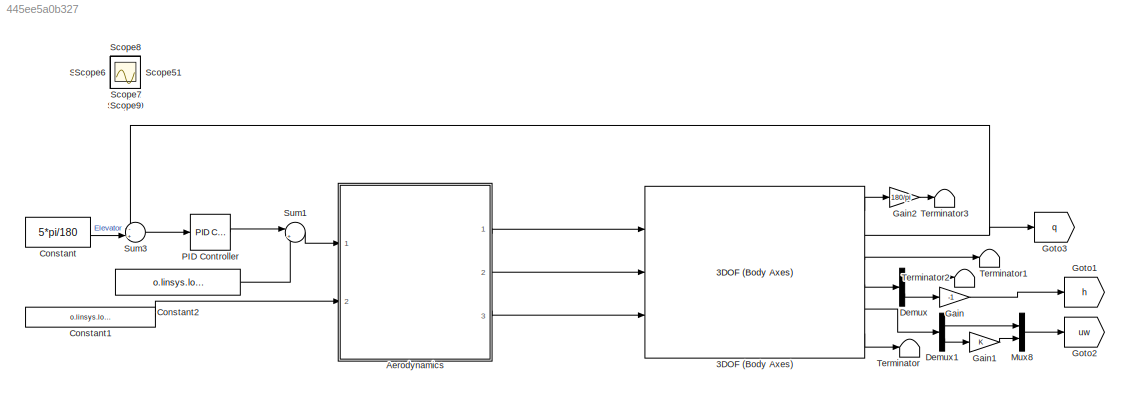
MODEL slx_445ee5a0b327
KIND model
CONFIG AbsTol = auto
CONFIG FixedStep = auto
CONFIG MaxStep = auto
CONFIG MinStep = auto
CONFIG RelTol = 1e-3
CONFIG SampleTimeConstraint = Unconstrained
CONFIG Solver = VariableStepAuto
CONFIG SolverMode = Auto
CONFIG SolverName = VariableStepAuto
CONFIG StartTime = 0.0
CONFIG StopTime = 10
BLOCK [Reference] 3DOF (Body Axes)  REF=aerolib3dof2/3DOF (Body Axes)
  Ports = [3, 6]
  SourceBlock = aerolib3dof2/3DOF (Body Axes)
  SourceType = 3DOF EoM
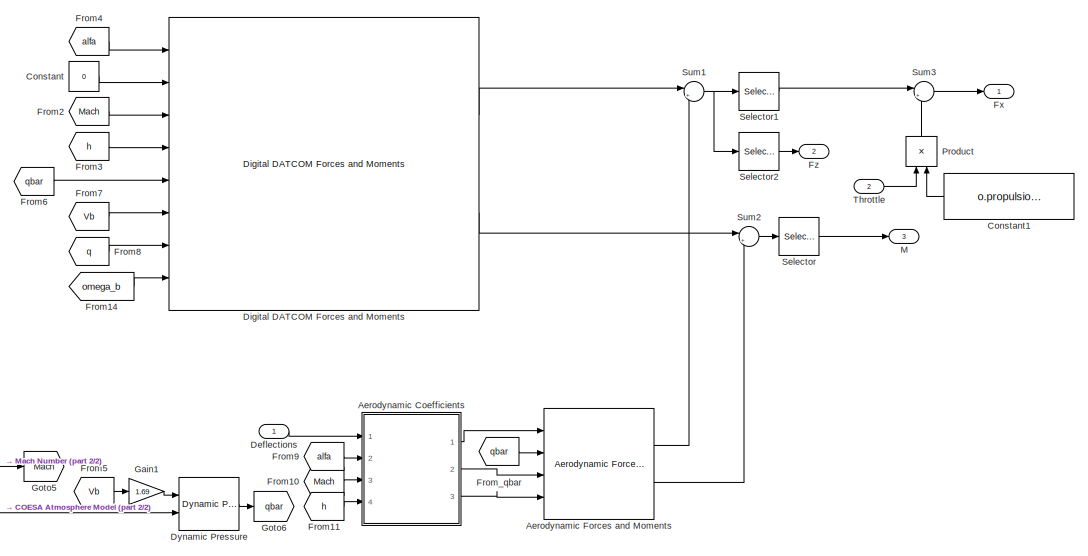
[diagram: Aerodynamics - part 1/2, center side, full height]
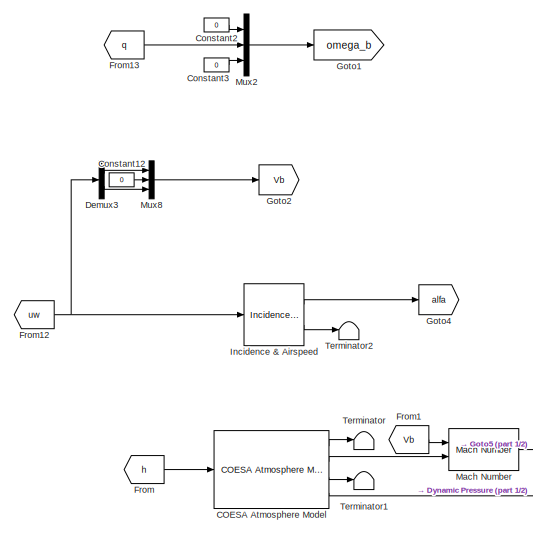
[diagram: Aerodynamics - part 2/2, left side, full height]
BLOCK [SubSystem] Aerodynamics
  Ports = [2, 3]
  RequestExecContextInheritance = off
  Variant = off
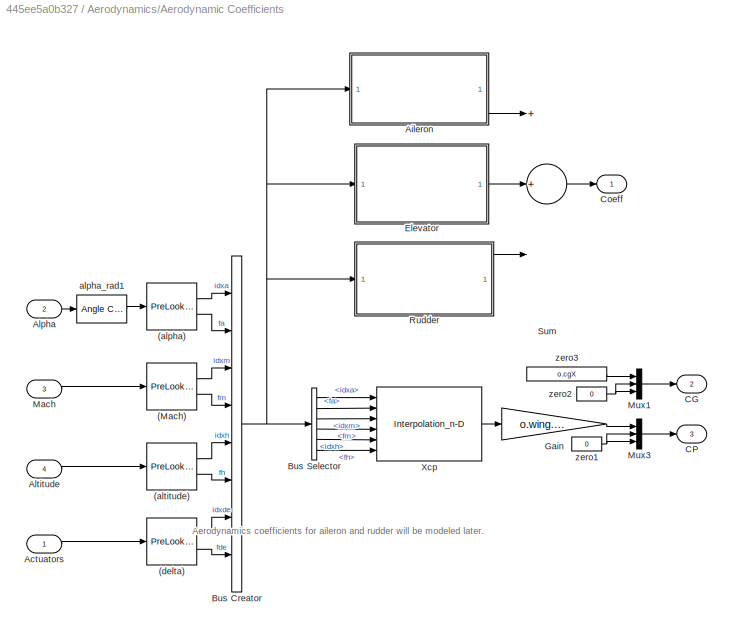
BLOCK [SubSystem] Aerodynamics/Aerodynamic Coefficients
  Ports = [4, 3]
  RequestExecContextInheritance = off
  Variant = off
BLOCK [PreLookup] Aerodynamics/Aerodynamic Coefficients/(Mach)
  BeginIndexSearchUsingPreviousIndexResult = on
  BreakpointsData = o.aero_dc{1}.mach
  ExtrapMethod = Linear
  FractionDataTypeStr = double
  IndexDataTypeStr = int32
  InputPortMap = u0
  Ports = [1, 2]
BLOCK [PreLookup] Aerodynamics/Aerodynamic Coefficients/(alpha)
  BeginIndexSearchUsingPreviousIndexResult = on
  BreakpointsData = o.aero_dc{1}.alpha
  ExtrapMethod = Linear
  FractionDataTypeStr = double
  IndexDataTypeStr = int32
  InputPortMap = u0
  Ports = [1, 2]
BLOCK [PreLookup] Aerodynamics/Aerodynamic Coefficients/(altitude)
  BeginIndexSearchUsingPreviousIndexResult = on
  BreakpointsData = o.aero_dc{1}.alt
  ExtrapMethod = Linear
  FractionDataTypeStr = double
  IndexDataTypeStr = int32
  InputPortMap = u0
  Ports = [1, 2]
BLOCK [PreLookup] Aerodynamics/Aerodynamic Coefficients/(delta)
  BeginIndexSearchUsingPreviousIndexResult = on
  BreakpointsData = o.aero_dc{1}.delta
  ExtrapMethod = Linear
  FractionDataTypeStr = double
  IndexDataTypeStr = int32
  InputPortMap = u0
  Ports = [1, 2]
BLOCK [Inport] Aerodynamics/Aerodynamic Coefficients/Actuators
  IconDisplay = Port number
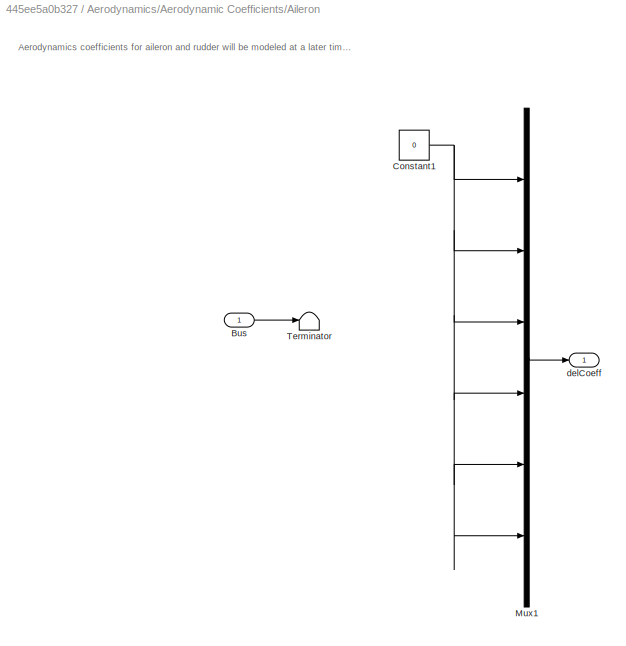
BLOCK [SubSystem] Aerodynamics/Aerodynamic Coefficients/Aileron
  Ports = [1, 1]
  RequestExecContextInheritance = off
  Variant = off
BLOCK [Inport] Aerodynamics/Aerodynamic Coefficients/Aileron/Bus
  IconDisplay = Port number
BLOCK [Constant] Aerodynamics/Aerodynamic Coefficients/Aileron/Constant1
  Value = 0
BLOCK [Mux] Aerodynamics/Aerodynamic Coefficients/Aileron/Mux1
  Inputs = 6
  Ports = [6, 1]
BLOCK [Terminator] Aerodynamics/Aerodynamic Coefficients/Aileron/Terminator
BLOCK [Outport] Aerodynamics/Aerodynamic Coefficients/Aileron/delCoeff
  IconDisplay = Port number
BLOCK [Inport] Aerodynamics/Aerodynamic Coefficients/Alpha
  IconDisplay = Port number
  Port = 2
BLOCK [Inport] Aerodynamics/Aerodynamic Coefficients/Altitude
  IconDisplay = Port number
  Port = 4
BLOCK [BusCreator] Aerodynamics/Aerodynamic Coefficients/Bus Creator
  DisplayOption = bar
  InheritFromInputs = on
  Inputs = 8
  Ports = [8, 1]
BLOCK [BusSelector] Aerodynamics/Aerodynamic Coefficients/Bus Selector
  OutputSignals = idxa,fa,idxm,fm,idxh,fh
  Ports = [1, 6]
BLOCK [Outport] Aerodynamics/Aerodynamic Coefficients/CG
  IconDisplay = Port number
  InitialOutput = 0
  Port = 2
  PortDimensions = 3
BLOCK [Outport] Aerodynamics/Aerodynamic Coefficients/CP
  IconDisplay = Port number
  InitialOutput = 0
  Port = 3
  PortDimensions = 3
BLOCK [Outport] Aerodynamics/Aerodynamic Coefficients/Coeff
  IconDisplay = Port number
  InitialOutput = 0
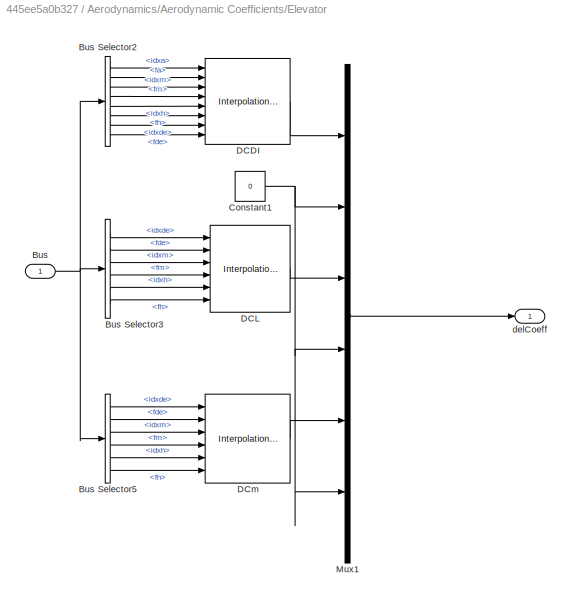
BLOCK [SubSystem] Aerodynamics/Aerodynamic Coefficients/Elevator
  Ports = [1, 1]
  RequestExecContextInheritance = off
  Variant = off
BLOCK [Inport] Aerodynamics/Aerodynamic Coefficients/Elevator/Bus
  IconDisplay = Port number
BLOCK [BusSelector] Aerodynamics/Aerodynamic Coefficients/Elevator/Bus Selector2
  OutputSignals = idxa,fa,idxm,fm,idxh,fh,idxde,fde
  Ports = [1, 8]
BLOCK [BusSelector] Aerodynamics/Aerodynamic Coefficients/Elevator/Bus Selector3
  OutputSignals = idxde,fde,idxm,fm,idxh,fh
  Ports = [1, 6]
BLOCK [BusSelector] Aerodynamics/Aerodynamic Coefficients/Elevator/Bus Selector5
  OutputSignals = idxde,fde,idxm,fm,idxh,fh
  Ports = [1, 6]
BLOCK [Constant] Aerodynamics/Aerodynamic Coefficients/Elevator/Constant1
  Value = 0
BLOCK [Interpolation_n-D] Aerodynamics/Aerodynamic Coefficients/Elevator/DCDI
  InputPortMap = u0,u1,u2,u3,u4,u5,u6,u7
  NumberOfTableDimensions = 4
  Ports = [8, 1]
  RemoveProtectionIndex = on
  Table = permute(o.aero_dc{1}.dcdi_sym,[1 3 4 2 ])
BLOCK [Interpolation_n-D] Aerodynamics/Aerodynamic Coefficients/Elevator/DCL
  InputPortMap = u0,u1,u2,u3,u4,u5
  NumberOfTableDimensions = 3
  Ports = [6, 1]
  RemoveProtectionIndex = on
  Table = permute(o.aero_dc{1}.dcl_sym,[1  2  3])
BLOCK [Interpolation_n-D] Aerodynamics/Aerodynamic Coefficients/Elevator/DCm
  InputPortMap = u0,u1,u2,u3,u4,u5
  NumberOfTableDimensions = 3
  Ports = [6, 1]
  RemoveProtectionIndex = on
  Table = permute(o.aero_dc{1}.dcm_sym,[1  2  3])
BLOCK [Mux] Aerodynamics/Aerodynamic Coefficients/Elevator/Mux1
  Inputs = 6
  Ports = [6, 1]
BLOCK [Outport] Aerodynamics/Aerodynamic Coefficients/Elevator/delCoeff
  IconDisplay = Port number
BLOCK [Gain] Aerodynamics/Aerodynamic Coefficients/Gain
  Gain = o.wing.cmac
  OutDataTypeStr = Inherit: Inherit via internal rule
  ParamDataTypeStr = Inherit: Inherit via internal rule
  SaturateOnIntegerOverflow = off
BLOCK [Inport] Aerodynamics/Aerodynamic Coefficients/Mach
  IconDisplay = Port number
  Port = 3
BLOCK [Mux] Aerodynamics/Aerodynamic Coefficients/Mux1
  DisplayOption = bar
  Inputs = 3
  Ports = [3, 1]
BLOCK [Mux] Aerodynamics/Aerodynamic Coefficients/Mux3
  DisplayOption = bar
  Inputs = 3
  Ports = [3, 1]
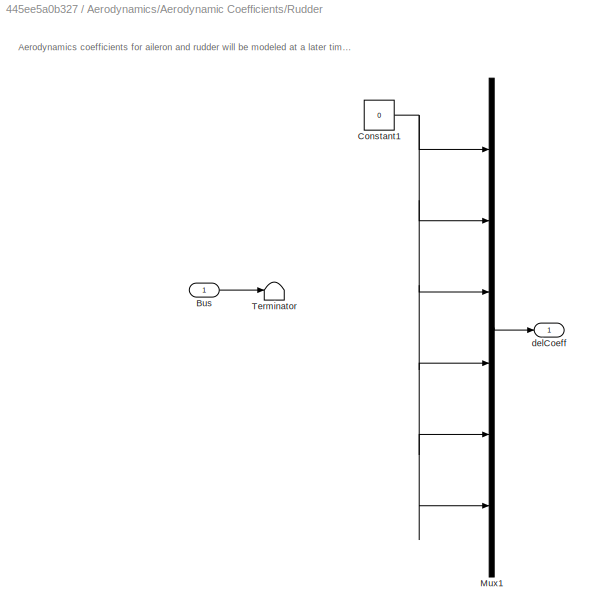
BLOCK [SubSystem] Aerodynamics/Aerodynamic Coefficients/Rudder
  Ports = [1, 1]
  RequestExecContextInheritance = off
  Variant = off
BLOCK [Inport] Aerodynamics/Aerodynamic Coefficients/Rudder/Bus
  IconDisplay = Port number
BLOCK [Constant] Aerodynamics/Aerodynamic Coefficients/Rudder/Constant1
  Value = 0
BLOCK [Mux] Aerodynamics/Aerodynamic Coefficients/Rudder/Mux1
  Inputs = 6
  Ports = [6, 1]
BLOCK [Terminator] Aerodynamics/Aerodynamic Coefficients/Rudder/Terminator
BLOCK [Outport] Aerodynamics/Aerodynamic Coefficients/Rudder/delCoeff
  IconDisplay = Port number
BLOCK [Sum] Aerodynamics/Aerodynamic Coefficients/Sum
  Inputs = 3
  Ports = [3, 1]
BLOCK [Interpolation_n-D] Aerodynamics/Aerodynamic Coefficients/Xcp
  InputPortMap = u0,u1,u2,u3,u4,u5
  NumberOfTableDimensions = 3
  OutDataTypeStr = double
  Ports = [6, 1]
  Table = permute(o.aero_dc{1}.xcp,[1  2  3])
BLOCK [Reference] Aerodynamics/Aerodynamic Coefficients/alpha_rad1  REF=aerolibconvert2/Angle Conversion
  Ports = [1, 1]
  SourceBlock = aerolibconvert2/Angle Conversion
  SourceType = Angle Conversion
BLOCK [Constant] Aerodynamics/Aerodynamic Coefficients/zero1
  Value = 0
BLOCK [Constant] Aerodynamics/Aerodynamic Coefficients/zero2
  Value = 0
BLOCK [Constant] Aerodynamics/Aerodynamic Coefficients/zero3
  Value = o.cgX
BLOCK [Reference] Aerodynamics/Aerodynamic Forces and Moments   REF=aerolibadyn/Aerodynamic
Forces and Moments 
  Ports = [4, 2]
  SourceBlock = aerolibadyn/Aerodynamic\nForces and Moments
  SourceType = Aerodynamic Forces and Moments
BLOCK [Reference] Aerodynamics/COESA Atmosphere Model  REF=aerolibatmos2/COESA Atmosphere Model
  Ports = [1, 4]
  SourceBlock = aerolibatmos2/COESA Atmosphere Model
  SourceType = Atmosphere Model
BLOCK [Constant] Aerodynamics/Constant
  Value = 0
BLOCK [Constant] Aerodynamics/Constant1
  Value = o.propulsion.thrust/2.2048*10
BLOCK [Constant] Aerodynamics/Constant12
  Value = 0
BLOCK [Constant] Aerodynamics/Constant2
  Value = 0
BLOCK [Constant] Aerodynamics/Constant3
  Value = 0
BLOCK [Inport] Aerodynamics/Deflections
  IconDisplay = Port number
BLOCK [Demux] Aerodynamics/Demux3
  DisplayOption = bar
  Outputs = 2
  Ports = [1, 2]
BLOCK [Reference] Aerodynamics/Digital DATCOM Forces and Moments  REF=aerolibadyn/Digital DATCOM
Forces and Moments
  Ports = [8, 2]
  SourceBlock = aerolibadyn/Digital DATCOM\nForces and Moments
  SourceType = Digital DATCOM Forces and Moments
BLOCK [Reference] Aerodynamics/Dynamic Pressure  REF=aerolibasang/Dynamic Pressure
  Ports = [2, 1]
  SourceBlock = aerolibasang/Dynamic Pressure
  SourceType = Dynamic Pressure
BLOCK [From] Aerodynamics/From
  GotoTag = h
  TagVisibility = global
BLOCK [From] Aerodynamics/From1
  GotoTag = Vb
  TagVisibility = global
BLOCK [From] Aerodynamics/From10
  GotoTag = Mach
BLOCK [From] Aerodynamics/From11
  GotoTag = h
  TagVisibility = global
BLOCK [From] Aerodynamics/From12
  GotoTag = uw
  TagVisibility = global
BLOCK [From] Aerodynamics/From13
  GotoTag = q
  TagVisibility = global
BLOCK [From] Aerodynamics/From14
  GotoTag = omega_b
  TagVisibility = global
BLOCK [From] Aerodynamics/From2
  GotoTag = Mach
BLOCK [From] Aerodynamics/From3
  GotoTag = h
  TagVisibility = global
BLOCK [From] Aerodynamics/From4
  GotoTag = alfa
  TagVisibility = global
BLOCK [From] Aerodynamics/From5
  GotoTag = Vb
  TagVisibility = global
BLOCK [From] Aerodynamics/From6
  GotoTag = qbar
BLOCK [From] Aerodynamics/From7
  GotoTag = Vb
  TagVisibility = global
BLOCK [From] Aerodynamics/From8
  GotoTag = q
  TagVisibility = global
BLOCK [From] Aerodynamics/From9
  GotoTag = alfa
  TagVisibility = global
BLOCK [From] Aerodynamics/From_qbar
  GotoTag = qbar
BLOCK [Outport] Aerodynamics/Fx
  IconDisplay = Port number
  Unit = N
BLOCK [Outport] Aerodynamics/Fz
  IconDisplay = Port number
  Port = 2
  Unit = N
BLOCK [Gain] Aerodynamics/Gain1
  Gain = 1.69
  OutDataTypeStr = Inherit: Inherit via internal rule
  ParamDataTypeStr = Inherit: Inherit via internal rule
  SaturateOnIntegerOverflow = off
BLOCK [Goto] Aerodynamics/Goto1
  GotoTag = omega_b
  TagVisibility = global
BLOCK [Goto] Aerodynamics/Goto2
  GotoTag = Vb
  TagVisibility = global
BLOCK [Goto] Aerodynamics/Goto4
  GotoTag = alfa
  TagVisibility = global
BLOCK [Goto] Aerodynamics/Goto5
  GotoTag = Mach
BLOCK [Goto] Aerodynamics/Goto6
  GotoTag = qbar
BLOCK [Reference] Aerodynamics/Incidence & Airspeed  REF=aerolibasang/Incidence 
& Airspeed
  Ports = [1, 2]
  SourceBlock = aerolibasang/Incidence \n& Airspeed
  SourceType = Incidence&Airspeed
BLOCK [Outport] Aerodynamics/M
  IconDisplay = Port number
  Port = 3
  Unit = N*m
BLOCK [Reference] Aerodynamics/Mach Number  REF=aerolibasang/Mach Number
  Ports = [2, 1]
  SourceBlock = aerolibasang/Mach Number
  SourceType = Mach Number
BLOCK [Mux] Aerodynamics/Mux2
  DisplayOption = bar
  Inputs = 3
  Ports = [3, 1]
BLOCK [Mux] Aerodynamics/Mux8
  DisplayOption = bar
  Inputs = 3
  Ports = [3, 1]
BLOCK [Product] Aerodynamics/Product
  InputSameDT = off
  OutDataTypeStr = Inherit: Inherit via internal rule
  Ports = [2, 1]
  RndMeth = Floor
  SaturateOnIntegerOverflow = off
BLOCK [Selector] Aerodynamics/Selector
  IndexOptions = Index vector (dialog)
  Indices = 2
  InputPortWidth = 3
  OutputSizes = 1
  Ports = [1, 1]
BLOCK [Selector] Aerodynamics/Selector1
  IndexOptions = Index vector (dialog)
  Indices = 1
  InputPortWidth = 3
  OutputSizes = 1
  Ports = [1, 1]
BLOCK [Selector] Aerodynamics/Selector2
  IndexOptions = Index vector (dialog)
  Indices = 3
  InputPortWidth = 3
  OutputSizes = 1
  Ports = [1, 1]
BLOCK [Sum] Aerodynamics/Sum1
  IconShape = round
  InputSameDT = off
  Inputs = |++
  OutDataTypeStr = Inherit: Inherit via internal rule
  Ports = [2, 1]
  SaturateOnIntegerOverflow = off
BLOCK [Sum] Aerodynamics/Sum2
  IconShape = round
  InputSameDT = off
  Inputs = |++
  OutDataTypeStr = Inherit: Inherit via internal rule
  Ports = [2, 1]
  SaturateOnIntegerOverflow = off
BLOCK [Sum] Aerodynamics/Sum3
  IconShape = round
  InputSameDT = off
  Inputs = |++
  OutDataTypeStr = Inherit: Inherit via internal rule
  Ports = [2, 1]
  SaturateOnIntegerOverflow = off
BLOCK [Terminator] Aerodynamics/Terminator
BLOCK [Terminator] Aerodynamics/Terminator1
BLOCK [Terminator] Aerodynamics/Terminator2
BLOCK [Inport] Aerodynamics/Throttle
  IconDisplay = Port number
  Port = 2
BLOCK [Constant] Constant
  Value = 5*pi/180
BLOCK [Constant] Constant1
  Value = o.linsys.long.op.Inputs(2).u
BLOCK [Constant] Constant2
  Value = o.linsys.long.op.Inputs(1).u
BLOCK [Demux] Demux
  DisplayOption = bar
  Outputs = 2
  Ports = [1, 2]
BLOCK [Demux] Demux1
  DisplayOption = bar
  Outputs = 2
  Ports = [1, 2]
BLOCK [Gain] Gain
  Gain = -1
  OutDataTypeStr = Inherit: Inherit via internal rule
  ParamDataTypeStr = Inherit: Inherit via internal rule
  SaturateOnIntegerOverflow = off
BLOCK [Gain] Gain1
  OutDataTypeStr = Inherit: Inherit via internal rule
  ParamDataTypeStr = Inherit: Inherit via internal rule
  SaturateOnIntegerOverflow = off
BLOCK [Gain] Gain2
  Gain = 180/pi
  OutDataTypeStr = Inherit: Inherit via internal rule
  ParamDataTypeStr = Inherit: Inherit via internal rule
  SaturateOnIntegerOverflow = off
BLOCK [Goto] Goto1
  GotoTag = h
  TagVisibility = global
BLOCK [Goto] Goto2
  GotoTag = uw
  TagVisibility = global
BLOCK [Goto] Goto3
  GotoTag = q
  TagVisibility = global
BLOCK [Mux] Mux8
  DisplayOption = bar
  Inputs = 2
  Ports = [2, 1]
BLOCK [Reference] PID Controller  REF=simulink/Continuous/PID Controller
  Ports = [1, 1]
  SourceBlock = simulink/Continuous/PID Controller
  SourceType = PID 1dof
BLOCK [Scope] Scope
  IOType = viewer
  Ports = []
  ScopeSpecificationString = Simulink.scopes.TimeScopeBlockCfg('CurrentConfiguration', extmgr.ConfigurationSet(extmgr.Configuration('Core','General UI',true),extmgr.Configuration('Core','Source UI',true),extmgr.Configuration('Sources','WiredSimulink',true,'DataLoggingVariableName','ScopeData1'),extmgr.Configuration('Visuals','Time Domain',true,'SerializedDisplays',{struct('MinYLimReal','9755.33958','MaxYLimReal','9803.36371',...<+1439ch>
BLOCK [Scope] Scope1
  IOType = viewer
  Ports = []
  ScopeSpecificationString = Simulink.scopes.TimeScopeBlockCfg('CurrentConfiguration', extmgr.ConfigurationSet(extmgr.Configuration('Core','General UI',true),extmgr.Configuration('Core','Source UI',true),extmgr.Configuration('Sources','WiredSimulink',true,'DataLoggingVariableName','ScopeData1'),extmgr.Configuration('Visuals','Time Domain',true,'SerializedDisplays',{struct('MinYLimReal','-34.07989','MaxYLimReal','139.91542','Y...<+1403ch>
BLOCK [Scope] Scope10
  IOType = viewer
  Ports = []
  ScopeSpecificationString = Simulink.scopes.TimeScopeBlockCfg('CurrentConfiguration', extmgr.ConfigurationSet(extmgr.Configuration('Core','General UI',true),extmgr.Configuration('Core','Source UI',true),extmgr.Configuration('Sources','WiredSimulink',true,'DataLoggingVariableName','ScopeData1'),extmgr.Configuration('Visuals','Time Domain',true,'SerializedDisplays',{struct('MinYLimReal','-9.85893','MaxYLimReal','538.51079','YL...<+1383ch>
BLOCK [Scope] Scope11
  IOType = viewer
  Ports = []
  ScopeSpecificationString = Simulink.scopes.TimeScopeBlockCfg('CurrentConfiguration', extmgr.ConfigurationSet(extmgr.Configuration('Core','General UI',true),extmgr.Configuration('Core','Source UI',true),extmgr.Configuration('Sources','WiredSimulink',true,'DataLoggingVariableName','ScopeData1'),extmgr.Configuration('Visuals','Time Domain',true,'SerializedDisplays',{struct('MinYLimReal','-6.03236','MaxYLimReal','56.22119','YLa...<+1439ch>
BLOCK [Scope] Scope12
  IOType = viewer
  Ports = []
  ScopeSpecificationString = Simulink.scopes.TimeScopeBlockCfg('CurrentConfiguration', extmgr.ConfigurationSet(extmgr.Configuration('Core','General UI',true),extmgr.Configuration('Core','Source UI',true),extmgr.Configuration('Sources','WiredSimulink',true,'DataLoggingVariableName','ScopeData1'),extmgr.Configuration('Visuals','Time Domain',true,'SerializedDisplays',{struct('MinYLimReal','-0.02076','MaxYLimReal','0.05366','YLab...<+1382ch>
BLOCK [Scope] Scope2
  IOType = viewer
  Ports = []
  ScopeSpecificationString = Simulink.scopes.TimeScopeBlockCfg('CurrentConfiguration', extmgr.ConfigurationSet(extmgr.Configuration('Core','General UI',true),extmgr.Configuration('Core','Source UI',true),extmgr.Configuration('Sources','WiredSimulink',true,'DataLoggingVariableName','ScopeData1'),extmgr.Configuration('Visuals','Time Domain',true,'SerializedDisplays',{struct('MinYLimReal','-24.06185','MaxYLimReal','2.67354','YLa...<+1480ch>
BLOCK [Scope] Scope3
  IOType = viewer
  Ports = []
  ScopeSpecificationString = Simulink.scopes.TimeScopeBlockCfg('CurrentConfiguration', extmgr.ConfigurationSet(extmgr.Configuration('Core','General UI',true),extmgr.Configuration('Core','Source UI',true),extmgr.Configuration('Sources','WiredSimulink',true,'DataLoggingVariableName','ScopeData3'),extmgr.Configuration('Visuals','Time Domain',true,'SerializedDisplays',{struct('MinYLimReal','-16.8199','MaxYLimReal','157.17541','YL...<+1396ch>
BLOCK [Scope] Scope4
  IOType = viewer
  Ports = []
  ScopeSpecificationString = Simulink.scopes.TimeScopeBlockCfg('CurrentConfiguration', extmgr.ConfigurationSet(extmgr.Configuration('Core','General UI',true),extmgr.Configuration('Core','Source UI',true),extmgr.Configuration('Sources','WiredSimulink',true,'DataLoggingVariableName','ScopeData4'),extmgr.Configuration('Visuals','Time Domain',true,'SerializedDisplays',{struct('MinYLimReal','-377.45606','MaxYLimReal','-2.17804','Y...<+1434ch>
BLOCK [Scope] Scope5
  IOType = viewer
  Ports = []
  ScopeSpecificationString = Simulink.scopes.TimeScopeBlockCfg('CurrentConfiguration', extmgr.ConfigurationSet(extmgr.Configuration('Core','General UI',true),extmgr.Configuration('Core','Source UI',true),extmgr.Configuration('Sources','WiredSimulink',true,'DataLoggingVariableName','ScopeData5'),extmgr.Configuration('Visuals','Time Domain',true,'SerializedDisplays',{struct('MinYLimReal','0.02058','MaxYLimReal','0.10208','YLabe...<+1393ch>
BLOCK [Scope] Scope6
  IOType = viewer
  Ports = []
  ScopeSpecificationString = Simulink.scopes.TimeScopeBlockCfg('CurrentConfiguration', extmgr.ConfigurationSet(extmgr.Configuration('Core','General UI',true),extmgr.Configuration('Core','Source UI',true),extmgr.Configuration('Sources','WiredSimulink',true,'DataLoggingVariableName','ScopeData6'),extmgr.Configuration('Visuals','Time Domain',true,'SerializedDisplays',{struct('MinYLimReal','-12.33715','MaxYLimReal','28.38826','YL...<+1508ch>
BLOCK [Scope] Scope7
  IOType = viewer
  Ports = []
  ScopeSpecificationString = Simulink.scopes.TimeScopeBlockCfg('CurrentConfiguration', extmgr.ConfigurationSet(extmgr.Configuration('Core','General UI',true),extmgr.Configuration('Core','Source UI',true),extmgr.Configuration('Sources','WiredSimulink',true,'DataLoggingVariableName','ScopeData7'),extmgr.Configuration('Visuals','Time Domain',true,'SerializedDisplays',{struct('MinYLimReal','-0.00002','MaxYLimReal','0.00021','YLab...<+1514ch>
BLOCK [Scope] Scope8
  IOType = viewer
  Ports = []
  ScopeSpecificationString = Simulink.scopes.TimeScopeBlockCfg('CurrentConfiguration', extmgr.ConfigurationSet(extmgr.Configuration('Core','General UI',true),extmgr.Configuration('Core','Source UI',true),extmgr.Configuration('Sources','WiredSimulink',true,'DataLoggingVariableName','ScopeData8'),extmgr.Configuration('Visuals','Time Domain',true,'SerializedDisplays',{struct('MinYLimReal','-391.81322','MaxYLimReal','178.91283','...<+1517ch>
BLOCK [Scope] Scope9
  IOType = viewer
  Ports = []
  ScopeSpecificationString = Simulink.scopes.TimeScopeBlockCfg('CurrentConfiguration', extmgr.ConfigurationSet(extmgr.Configuration('Core','General UI',true),extmgr.Configuration('Core','Source UI',true),extmgr.Configuration('Sources','WiredSimulink',true,'DataLoggingVariableName','ScopeData9'),extmgr.Configuration('Visuals','Time Domain',true,'SerializedDisplays',{struct('MinYLimReal','-0.0215','MaxYLimReal','0.17244','YLabe...<+1501ch>
BLOCK [Sum] Sum1
  IconShape = round
  InputSameDT = off
  Inputs = |++
  OutDataTypeStr = Inherit: Inherit via internal rule
  Ports = [2, 1]
  SaturateOnIntegerOverflow = off
BLOCK [Sum] Sum3
  IconShape = round
  InputSameDT = off
  Inputs = -+|
  OutDataTypeStr = Inherit: Inherit via internal rule
  Ports = [2, 1]
  SaturateOnIntegerOverflow = off
BLOCK [Terminator] Terminator
BLOCK [Terminator] Terminator1
BLOCK [Terminator] Terminator2
BLOCK [Terminator] Terminator3
ANNOTATION Aerodynamics/Aerodynamic Coefficients: Aerodynamics coefficients for aileron and rudder will be modeled later.
ANNOTATION Aerodynamics/Aerodynamic Coefficients/Aileron: Aerodynamics coefficients for aileron and rudder will be modeled at a later time when 6DOF model is developed.
ANNOTATION Aerodynamics/Aerodynamic Coefficients/Rudder: Aerodynamics coefficients for aileron and rudder will be modeled at a later time when 6DOF model is developed.
LINE 3DOF (Body Axes):1 -> Gain2:1
NET 3DOF (Body Axes):2 -> Goto3:1, Sum3:1
LINE 3DOF (Body Axes):3 -> Terminator1:1
LINE 3DOF (Body Axes):4 -> Demux:1
LINE 3DOF (Body Axes):5 -> Demux1:1
LINE 3DOF (Body Axes):6 -> Terminator:1
LINE Aerodynamics/Aerodynamic Coefficients/(Mach):1 -> Aerodynamics/Aerodynamic Coefficients/Bus Creator:3
LINE Aerodynamics/Aerodynamic Coefficients/(Mach):2 -> Aerodynamics/Aerodynamic Coefficients/Bus Creator:4
LINE Aerodynamics/Aerodynamic Coefficients/(alpha):1 -> Aerodynamics/Aerodynamic Coefficients/Bus Creator:1
LINE Aerodynamics/Aerodynamic Coefficients/(alpha):2 -> Aerodynamics/Aerodynamic Coefficients/Bus Creator:2
LINE Aerodynamics/Aerodynamic Coefficients/(altitude):1 -> Aerodynamics/Aerodynamic Coefficients/Bus Creator:5
LINE Aerodynamics/Aerodynamic Coefficients/(altitude):2 -> Aerodynamics/Aerodynamic Coefficients/Bus Creator:6
LINE Aerodynamics/Aerodynamic Coefficients/(delta):1 -> Aerodynamics/Aerodynamic Coefficients/Bus Creator:7
LINE Aerodynamics/Aerodynamic Coefficients/(delta):2 -> Aerodynamics/Aerodynamic Coefficients/Bus Creator:8
LINE Aerodynamics/Aerodynamic Coefficients/Actuators:1 -> Aerodynamics/Aerodynamic Coefficients/(delta):1
LINE Aerodynamics/Aerodynamic Coefficients/Aileron/Bus:1 -> Aerodynamics/Aerodynamic Coefficients/Aileron/Terminator:1
NET Aerodynamics/Aerodynamic Coefficients/Aileron/Constant1:1 -> Aerodynamics/Aerodynamic Coefficients/Aileron/Mux1:1, Aerodynamics/Aerodynamic Coefficients/Aileron/Mux1:2, Aerodynamics/Aerodynamic Coefficients/Aileron/Mux1:3, Aerodynamics/Aerodynamic Coefficients/Aileron/Mux1:4, Aerodynamics/Aerodynamic Coefficients/Aileron/Mux1:5, Aerodynamics/Aerodynamic Coefficients/Aileron/Mux1:6
LINE Aerodynamics/Aerodynamic Coefficients/Aileron/Mux1:1 -> Aerodynamics/Aerodynamic Coefficients/Aileron/delCoeff:1
LINE Aerodynamics/Aerodynamic Coefficients/Aileron:1 -> Aerodynamics/Aerodynamic Coefficients/Sum:1
LINE Aerodynamics/Aerodynamic Coefficients/Alpha:1 -> Aerodynamics/Aerodynamic Coefficients/alpha_rad1:1
LINE Aerodynamics/Aerodynamic Coefficients/Altitude:1 -> Aerodynamics/Aerodynamic Coefficients/(altitude):1
NET Aerodynamics/Aerodynamic Coefficients/Bus Creator:1 -> Aerodynamics/Aerodynamic Coefficients/Aileron:1, Aerodynamics/Aerodynamic Coefficients/Bus Selector:1, Aerodynamics/Aerodynamic Coefficients/Elevator:1, Aerodynamics/Aerodynamic Coefficients/Rudder:1
LINE Aerodynamics/Aerodynamic Coefficients/Bus Selector:1 -> Aerodynamics/Aerodynamic Coefficients/Xcp:1
LINE Aerodynamics/Aerodynamic Coefficients/Bus Selector:2 -> Aerodynamics/Aerodynamic Coefficients/Xcp:2
LINE Aerodynamics/Aerodynamic Coefficients/Bus Selector:3 -> Aerodynamics/Aerodynamic Coefficients/Xcp:3
LINE Aerodynamics/Aerodynamic Coefficients/Bus Selector:4 -> Aerodynamics/Aerodynamic Coefficients/Xcp:4
LINE Aerodynamics/Aerodynamic Coefficients/Bus Selector:5 -> Aerodynamics/Aerodynamic Coefficients/Xcp:5
LINE Aerodynamics/Aerodynamic Coefficients/Bus Selector:6 -> Aerodynamics/Aerodynamic Coefficients/Xcp:6
LINE Aerodynamics/Aerodynamic Coefficients/Elevator/Bus Selector2:1 -> Aerodynamics/Aerodynamic Coefficients/Elevator/DCDI:1
LINE Aerodynamics/Aerodynamic Coefficients/Elevator/Bus Selector2:2 -> Aerodynamics/Aerodynamic Coefficients/Elevator/DCDI:2
LINE Aerodynamics/Aerodynamic Coefficients/Elevator/Bus Selector2:3 -> Aerodynamics/Aerodynamic Coefficients/Elevator/DCDI:3
LINE Aerodynamics/Aerodynamic Coefficients/Elevator/Bus Selector2:4 -> Aerodynamics/Aerodynamic Coefficients/Elevator/DCDI:4
LINE Aerodynamics/Aerodynamic Coefficients/Elevator/Bus Selector2:5 -> Aerodynamics/Aerodynamic Coefficients/Elevator/DCDI:5
LINE Aerodynamics/Aerodynamic Coefficients/Elevator/Bus Selector2:6 -> Aerodynamics/Aerodynamic Coefficients/Elevator/DCDI:6
LINE Aerodynamics/Aerodynamic Coefficients/Elevator/Bus Selector2:7 -> Aerodynamics/Aerodynamic Coefficients/Elevator/DCDI:7
LINE Aerodynamics/Aerodynamic Coefficients/Elevator/Bus Selector2:8 -> Aerodynamics/Aerodynamic Coefficients/Elevator/DCDI:8
LINE Aerodynamics/Aerodynamic Coefficients/Elevator/Bus Selector3:1 -> Aerodynamics/Aerodynamic Coefficients/Elevator/DCL:1
LINE Aerodynamics/Aerodynamic Coefficients/Elevator/Bus Selector3:2 -> Aerodynamics/Aerodynamic Coefficients/Elevator/DCL:2
LINE Aerodynamics/Aerodynamic Coefficients/Elevator/Bus Selector3:3 -> Aerodynamics/Aerodynamic Coefficients/Elevator/DCL:3
LINE Aerodynamics/Aerodynamic Coefficients/Elevator/Bus Selector3:4 -> Aerodynamics/Aerodynamic Coefficients/Elevator/DCL:4
LINE Aerodynamics/Aerodynamic Coefficients/Elevator/Bus Selector3:5 -> Aerodynamics/Aerodynamic Coefficients/Elevator/DCL:5
LINE Aerodynamics/Aerodynamic Coefficients/Elevator/Bus Selector3:6 -> Aerodynamics/Aerodynamic Coefficients/Elevator/DCL:6
LINE Aerodynamics/Aerodynamic Coefficients/Elevator/Bus Selector5:1 -> Aerodynamics/Aerodynamic Coefficients/Elevator/DCm:1
LINE Aerodynamics/Aerodynamic Coefficients/Elevator/Bus Selector5:2 -> Aerodynamics/Aerodynamic Coefficients/Elevator/DCm:2
LINE Aerodynamics/Aerodynamic Coefficients/Elevator/Bus Selector5:3 -> Aerodynamics/Aerodynamic Coefficients/Elevator/DCm:3
LINE Aerodynamics/Aerodynamic Coefficients/Elevator/Bus Selector5:4 -> Aerodynamics/Aerodynamic Coefficients/Elevator/DCm:4
LINE Aerodynamics/Aerodynamic Coefficients/Elevator/Bus Selector5:5 -> Aerodynamics/Aerodynamic Coefficients/Elevator/DCm:5
LINE Aerodynamics/Aerodynamic Coefficients/Elevator/Bus Selector5:6 -> Aerodynamics/Aerodynamic Coefficients/Elevator/DCm:6
NET Aerodynamics/Aerodynamic Coefficients/Elevator/Bus:1 -> Aerodynamics/Aerodynamic Coefficients/Elevator/Bus Selector2:1, Aerodynamics/Aerodynamic Coefficients/Elevator/Bus Selector3:1, Aerodynamics/Aerodynamic Coefficients/Elevator/Bus Selector5:1
NET Aerodynamics/Aerodynamic Coefficients/Elevator/Constant1:1 -> Aerodynamics/Aerodynamic Coefficients/Elevator/Mux1:2, Aerodynamics/Aerodynamic Coefficients/Elevator/Mux1:4, Aerodynamics/Aerodynamic Coefficients/Elevator/Mux1:6
LINE Aerodynamics/Aerodynamic Coefficients/Elevator/DCDI:1 -> Aerodynamics/Aerodynamic Coefficients/Elevator/Mux1:1
LINE Aerodynamics/Aerodynamic Coefficients/Elevator/DCL:1 -> Aerodynamics/Aerodynamic Coefficients/Elevator/Mux1:3
LINE Aerodynamics/Aerodynamic Coefficients/Elevator/DCm:1 -> Aerodynamics/Aerodynamic Coefficients/Elevator/Mux1:5
LINE Aerodynamics/Aerodynamic Coefficients/Elevator/Mux1:1 -> Aerodynamics/Aerodynamic Coefficients/Elevator/delCoeff:1
LINE Aerodynamics/Aerodynamic Coefficients/Elevator:1 -> Aerodynamics/Aerodynamic Coefficients/Sum:2
LINE Aerodynamics/Aerodynamic Coefficients/Gain:1 -> Aerodynamics/Aerodynamic Coefficients/Mux3:1
LINE Aerodynamics/Aerodynamic Coefficients/Mach:1 -> Aerodynamics/Aerodynamic Coefficients/(Mach):1
LINE Aerodynamics/Aerodynamic Coefficients/Mux1:1 -> Aerodynamics/Aerodynamic Coefficients/CG:1
LINE Aerodynamics/Aerodynamic Coefficients/Mux3:1 -> Aerodynamics/Aerodynamic Coefficients/CP:1
LINE Aerodynamics/Aerodynamic Coefficients/Rudder/Bus:1 -> Aerodynamics/Aerodynamic Coefficients/Rudder/Terminator:1
NET Aerodynamics/Aerodynamic Coefficients/Rudder/Constant1:1 -> Aerodynamics/Aerodynamic Coefficients/Rudder/Mux1:1, Aerodynamics/Aerodynamic Coefficients/Rudder/Mux1:2, Aerodynamics/Aerodynamic Coefficients/Rudder/Mux1:3, Aerodynamics/Aerodynamic Coefficients/Rudder/Mux1:4, Aerodynamics/Aerodynamic Coefficients/Rudder/Mux1:5, Aerodynamics/Aerodynamic Coefficients/Rudder/Mux1:6
LINE Aerodynamics/Aerodynamic Coefficients/Rudder/Mux1:1 -> Aerodynamics/Aerodynamic Coefficients/Rudder/delCoeff:1
LINE Aerodynamics/Aerodynamic Coefficients/Rudder:1 -> Aerodynamics/Aerodynamic Coefficients/Sum:3
LINE Aerodynamics/Aerodynamic Coefficients/Sum:1 -> Aerodynamics/Aerodynamic Coefficients/Coeff:1
LINE Aerodynamics/Aerodynamic Coefficients/Xcp:1 -> Aerodynamics/Aerodynamic Coefficients/Gain:1
LINE Aerodynamics/Aerodynamic Coefficients/alpha_rad1:1 -> Aerodynamics/Aerodynamic Coefficients/(alpha):1
NET Aerodynamics/Aerodynamic Coefficients/zero1:1 -> Aerodynamics/Aerodynamic Coefficients/Mux3:2, Aerodynamics/Aerodynamic Coefficients/Mux3:3
NET Aerodynamics/Aerodynamic Coefficients/zero2:1 -> Aerodynamics/Aerodynamic Coefficients/Mux1:2, Aerodynamics/Aerodynamic Coefficients/Mux1:3
LINE Aerodynamics/Aerodynamic Coefficients/zero3:1 -> Aerodynamics/Aerodynamic Coefficients/Mux1:1
LINE Aerodynamics/Aerodynamic Coefficients:1 -> Aerodynamics/Aerodynamic Forces and Moments :1
LINE Aerodynamics/Aerodynamic Coefficients:2 -> Aerodynamics/Aerodynamic Forces and Moments :3
LINE Aerodynamics/Aerodynamic Coefficients:3 -> Aerodynamics/Aerodynamic Forces and Moments :4
LINE Aerodynamics/Aerodynamic Forces and Moments :1 -> Aerodynamics/Sum1:2
LINE Aerodynamics/Aerodynamic Forces and Moments :2 -> Aerodynamics/Sum2:2
LINE Aerodynamics/COESA Atmosphere Model:1 -> Aerodynamics/Terminator:1
LINE Aerodynamics/COESA Atmosphere Model:2 -> Aerodynamics/Mach Number:2
LINE Aerodynamics/COESA Atmosphere Model:3 -> Aerodynamics/Terminator1:1
LINE Aerodynamics/COESA Atmosphere Model:4 -> Aerodynamics/Dynamic Pressure:2
LINE Aerodynamics/Constant12:1 -> Aerodynamics/Mux8:2
LINE Aerodynamics/Constant1:1 -> Aerodynamics/Product:2
LINE Aerodynamics/Constant2:1 -> Aerodynamics/Mux2:1
LINE Aerodynamics/Constant3:1 -> Aerodynamics/Mux2:3
LINE Aerodynamics/Constant:1 -> Aerodynamics/Digital DATCOM Forces and Moments:2
LINE Aerodynamics/Deflections:1 -> Aerodynamics/Aerodynamic Coefficients:1
LINE Aerodynamics/Demux3:1 -> Aerodynamics/Mux8:1
LINE Aerodynamics/Demux3:2 -> Aerodynamics/Mux8:3
LINE Aerodynamics/Digital DATCOM Forces and Moments:1 -> Aerodynamics/Sum1:1
LINE Aerodynamics/Digital DATCOM Forces and Moments:2 -> Aerodynamics/Sum2:1
LINE Aerodynamics/Dynamic Pressure:1 -> Aerodynamics/Goto6:1
LINE Aerodynamics/From10:1 -> Aerodynamics/Aerodynamic Coefficients:3
LINE Aerodynamics/From11:1 -> Aerodynamics/Aerodynamic Coefficients:4
NET Aerodynamics/From12:1 -> Aerodynamics/Demux3:1, Aerodynamics/Incidence & Airspeed:1
LINE Aerodynamics/From13:1 -> Aerodynamics/Mux2:2
LINE Aerodynamics/From14:1 -> Aerodynamics/Digital DATCOM Forces and Moments:8
LINE Aerodynamics/From1:1 -> Aerodynamics/Mach Number:1
LINE Aerodynamics/From2:1 -> Aerodynamics/Digital DATCOM Forces and Moments:3
LINE Aerodynamics/From3:1 -> Aerodynamics/Digital DATCOM Forces and Moments:4
LINE Aerodynamics/From4:1 -> Aerodynamics/Digital DATCOM Forces and Moments:1
LINE Aerodynamics/From5:1 -> Aerodynamics/Gain1:1
LINE Aerodynamics/From6:1 -> Aerodynamics/Digital DATCOM Forces and Moments:5
LINE Aerodynamics/From7:1 -> Aerodynamics/Digital DATCOM Forces and Moments:6
LINE Aerodynamics/From8:1 -> Aerodynamics/Digital DATCOM Forces and Moments:7
LINE Aerodynamics/From9:1 -> Aerodynamics/Aerodynamic Coefficients:2
LINE Aerodynamics/From:1 -> Aerodynamics/COESA Atmosphere Model:1
LINE Aerodynamics/From_qbar:1 -> Aerodynamics/Aerodynamic Forces and Moments :2
LINE Aerodynamics/Gain1:1 -> Aerodynamics/Dynamic Pressure:1
LINE Aerodynamics/Incidence & Airspeed:1 -> Aerodynamics/Goto4:1
LINE Aerodynamics/Incidence & Airspeed:2 -> Aerodynamics/Terminator2:1
LINE Aerodynamics/Mach Number:1 -> Aerodynamics/Goto5:1
LINE Aerodynamics/Mux2:1 -> Aerodynamics/Goto1:1
LINE Aerodynamics/Mux8:1 -> Aerodynamics/Goto2:1
LINE Aerodynamics/Product:1 -> Aerodynamics/Sum3:2
LINE Aerodynamics/Selector1:1 -> Aerodynamics/Sum3:1
LINE Aerodynamics/Selector2:1 -> Aerodynamics/Fz:1
LINE Aerodynamics/Selector:1 -> Aerodynamics/M:1
NET Aerodynamics/Sum1:1 -> Aerodynamics/Selector1:1, Aerodynamics/Selector2:1
LINE Aerodynamics/Sum2:1 -> Aerodynamics/Selector:1
LINE Aerodynamics/Sum3:1 -> Aerodynamics/Fx:1
LINE Aerodynamics/Throttle:1 -> Aerodynamics/Product:1
LINE Aerodynamics:1 -> 3DOF (Body Axes):1
LINE Aerodynamics:2 -> 3DOF (Body Axes):2
LINE Aerodynamics:3 -> 3DOF (Body Axes):3
LINE Constant1:1 -> Aerodynamics:2
LINE Constant2:1 -> Sum1:2
LINE Constant:1 -> Sum3:2
LINE Demux1:1 -> Mux8:1
LINE Demux1:2 -> Gain1:1
LINE Demux:1 -> Terminator2:1
LINE Demux:2 -> Gain:1
LINE Gain1:1 -> Mux8:2
LINE Gain2:1 -> Terminator3:1
LINE Gain:1 -> Goto1:1
LINE Mux8:1 -> Goto2:1
LINE PID Controller:1 -> Sum1:1
LINE Sum1:1 -> Aerodynamics:1
LINE Sum3:1 -> PID Controller:1
note: NET lines group one-source signal fan-out (src -> all destinations, sorted); 1:1 wires keep LINE
